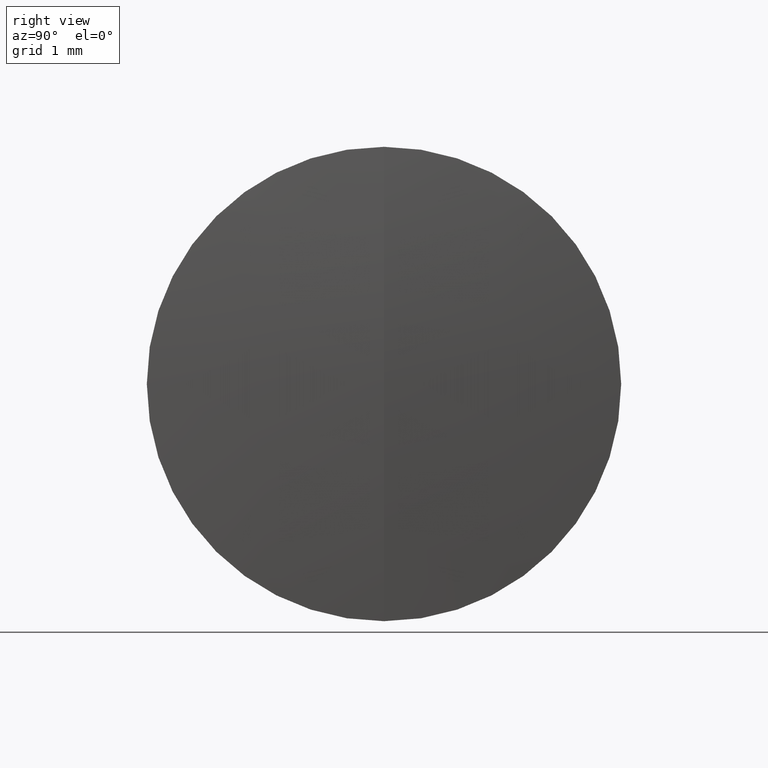
[diagram: clean part render]
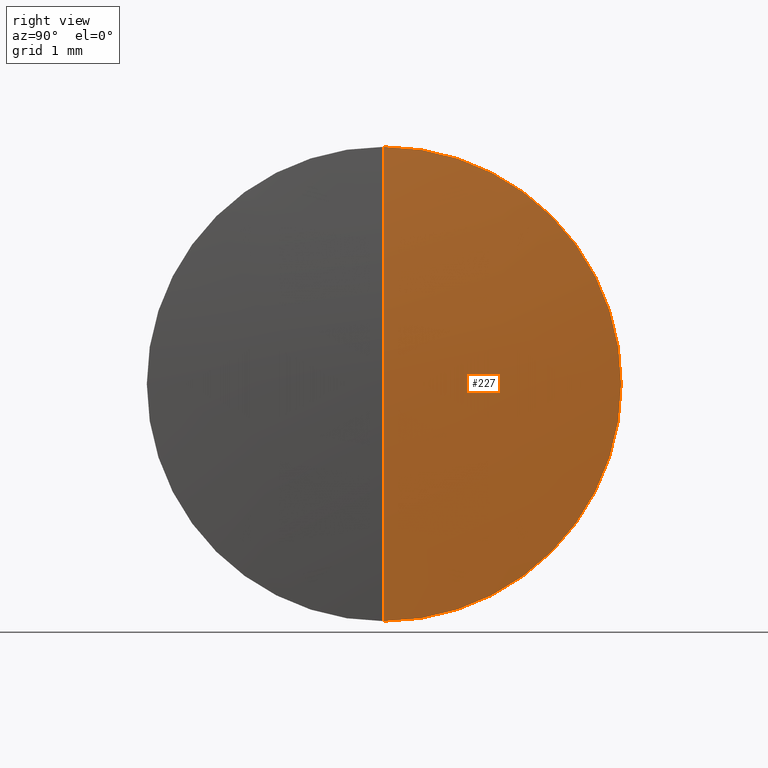
[diagram: same view with one face highlighted and labeled with its STEP entity id]
A machine part, right view. The second image highlights one B-rep face of the part: STEP entity #227.
In plain terms, the highlighted spherical surface has radius 32.9 mm.
Its self-contained STEP definition (entity closure, byte-faithful):
#1 = DIRECTION ( 'NONE',  ( -1.000000000000000000, -0.0000000000000000000, -0.0000000000000000000 ) ) ;
#5 = SPHERICAL_SURFACE ( 'NONE', #291, 32.90000000000002700 ) ;
#17 = EDGE_CURVE ( 'NONE', #210, #46, #328, .T. ) ;
#23 = DIRECTION ( 'NONE',  ( 0.0000000000000000000, 1.000000000000000000, 0.0000000000000000000 ) ) ;
#25 = EDGE_CURVE ( 'NONE', #307, #46, #292, .T. ) ;
#35 = CARTESIAN_POINT ( 'NONE',  ( 264.9271534009465100, 3.888253587292847600E-016, -3.175000000000000700 ) ) ;
#46 = VERTEX_POINT ( 'NONE', #35 ) ;
#54 = CARTESIAN_POINT ( 'NONE',  ( 232.1807127546716700, 0.0000000000000000000, 0.0000000000000000000 ) ) ;
#57 = CARTESIAN_POINT ( 'NONE',  ( 232.1807127546716700, 0.0000000000000000000, 0.0000000000000000000 ) ) ;
#116 = DIRECTION ( 'NONE',  ( -0.0000000000000000000, 1.000000000000000000, 1.224646799147353200E-016 ) ) ;
#131 = CARTESIAN_POINT ( 'NONE',  ( 264.9271534009465100, 0.0000000000000000000, 3.175000000000000700 ) ) ;
#134 = DIRECTION ( 'NONE',  ( 0.0000000000000000000, -1.000000000000000000, 0.0000000000000000000 ) ) ;
#150 = EDGE_CURVE ( 'NONE', #307, #210, #283, .T. ) ;
#162 = DIRECTION ( 'NONE',  ( 0.0000000000000000000, 0.0000000000000000000, 1.000000000000000000 ) ) ;
#169 = ORIENTED_EDGE ( 'NONE', *, *, #25, .T. ) ;
#181 = AXIS2_PLACEMENT_3D ( 'NONE', #57, #134, #289 ) ;
#189 = CARTESIAN_POINT ( 'NONE',  ( 264.9271534009465100, 0.0000000000000000000, 0.0000000000000000000 ) ) ;
#210 = VERTEX_POINT ( 'NONE', #131 ) ;
#214 = FACE_OUTER_BOUND ( 'NONE', #323, .T. ) ;
#223 = AXIS2_PLACEMENT_3D ( 'NONE', #296, #116, #270 ) ;
#227 = ADVANCED_FACE ( 'NONE', ( #214 ), #5, .T. ) ;
#232 = CARTESIAN_POINT ( 'NONE',  ( 265.0807127546717100, 0.0000000000000000000, 2.014543984597397600E-015 ) ) ;
#235 = ORIENTED_EDGE ( 'NONE', *, *, #150, .F. ) ;
#241 = AXIS2_PLACEMENT_3D ( 'NONE', #189, #1, #162 ) ;
#242 = ORIENTED_EDGE ( 'NONE', *, *, #17, .F. ) ;
#270 = DIRECTION ( 'NONE',  ( 0.0000000000000000000, -1.224646799147353200E-016, 1.000000000000000000 ) ) ;
#272 = DIRECTION ( 'NONE',  ( 0.0000000000000000000, 0.0000000000000000000, 1.000000000000000000 ) ) ;
#283 = CIRCLE ( 'NONE', #181, 32.90000000000002700 ) ;
#289 = DIRECTION ( 'NONE',  ( 0.0000000000000000000, 0.0000000000000000000, -1.000000000000000000 ) ) ;
#291 = AXIS2_PLACEMENT_3D ( 'NONE', #54, #23, #272 ) ;
#292 = CIRCLE ( 'NONE', #223, 32.90000000000002700 ) ;
#296 = CARTESIAN_POINT ( 'NONE',  ( 232.1807127546716700, 0.0000000000000000000, 0.0000000000000000000 ) ) ;
#307 = VERTEX_POINT ( 'NONE', #232 ) ;
#323 = EDGE_LOOP ( 'NONE', ( #235, #169, #242 ) ) ;
#328 = CIRCLE ( 'NONE', #241, 3.175000000000000700 ) ;